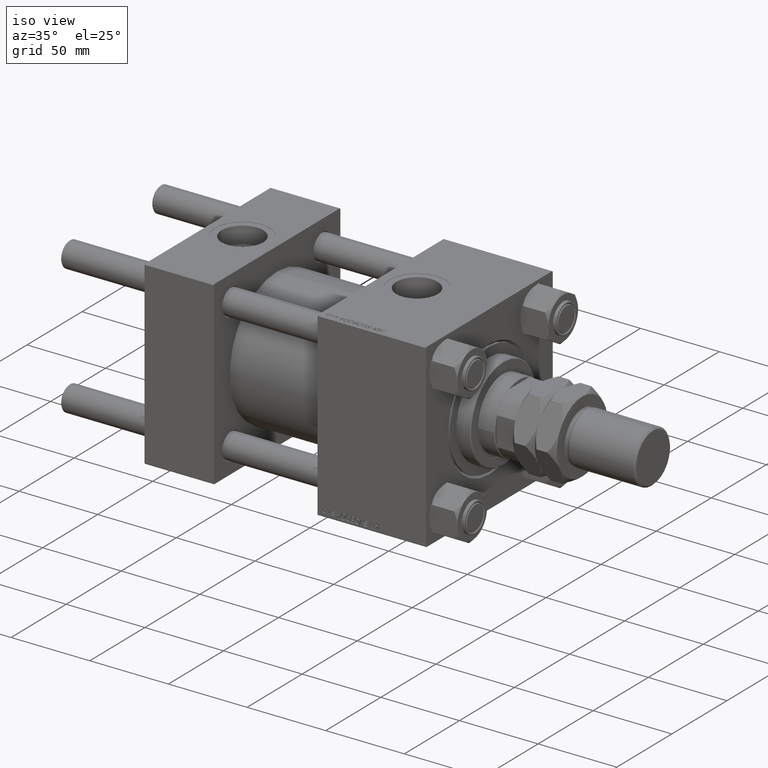
[diagram: clean part render]
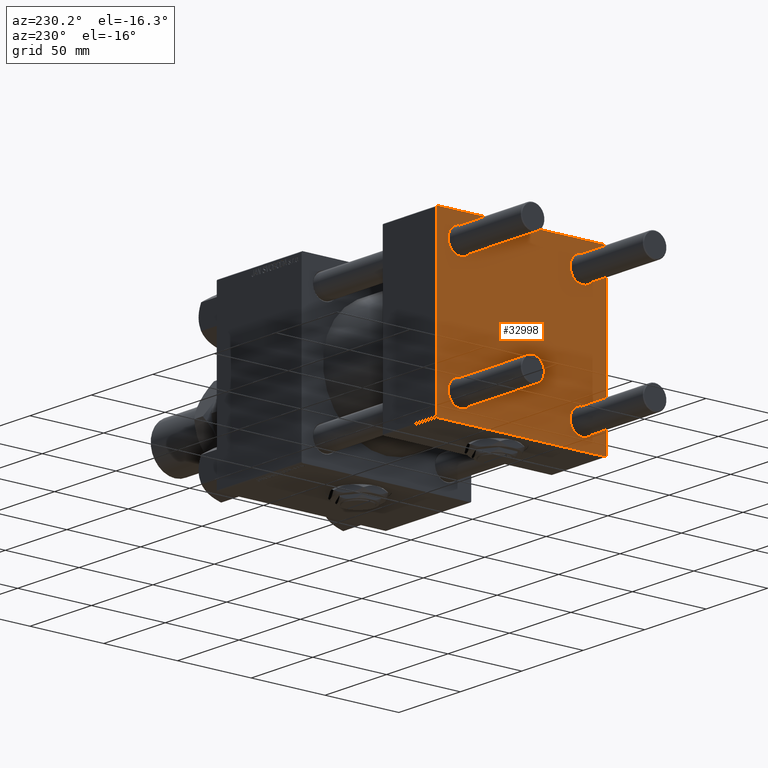
[diagram: tour spotlight — one face highlighted and labeled with its STEP entity id]
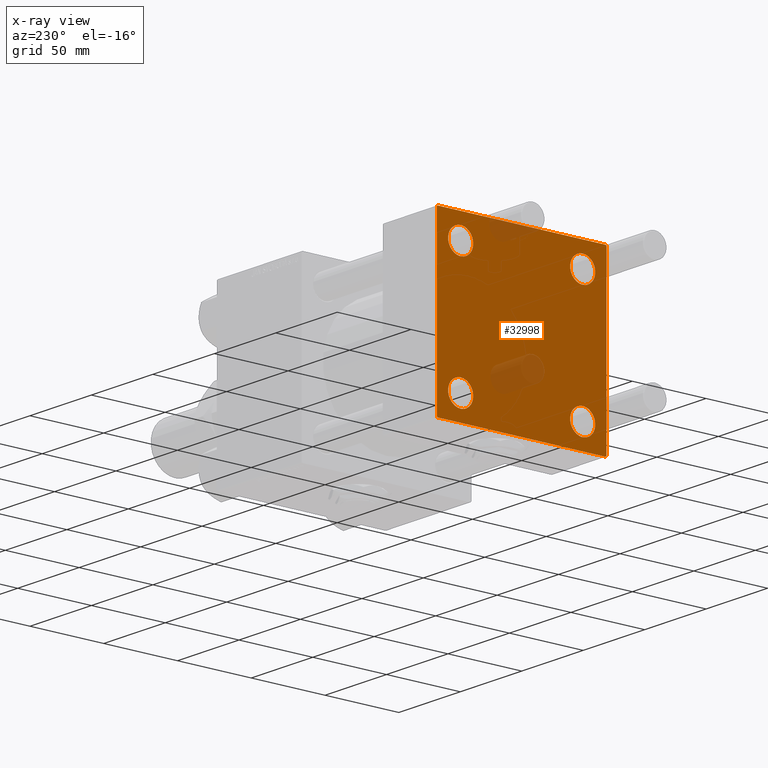
[diagram: x-ray of the same camera — body ghosted, this tour face saturated]
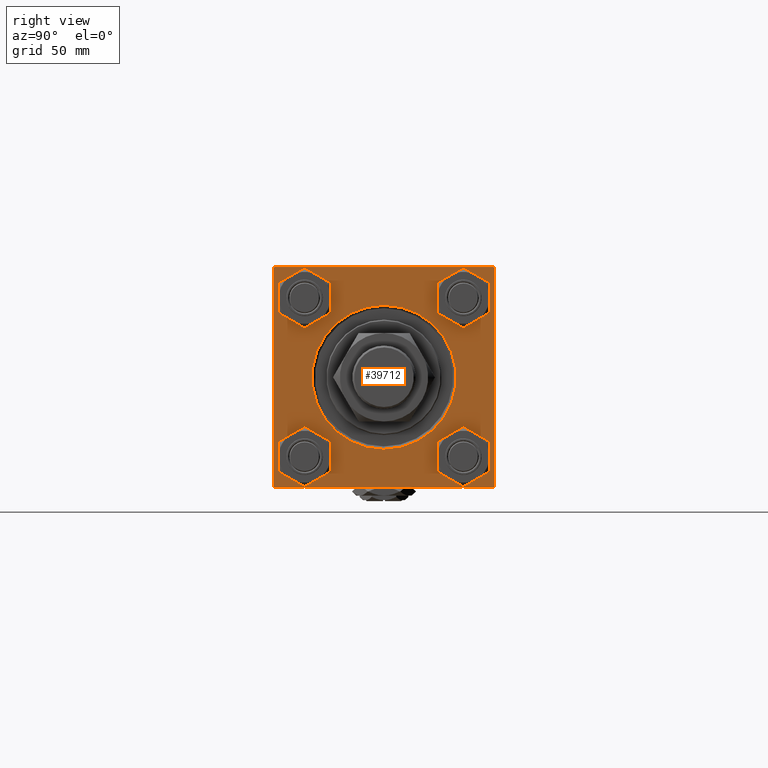
[diagram: tour spotlight — one face highlighted and labeled with its STEP entity id]
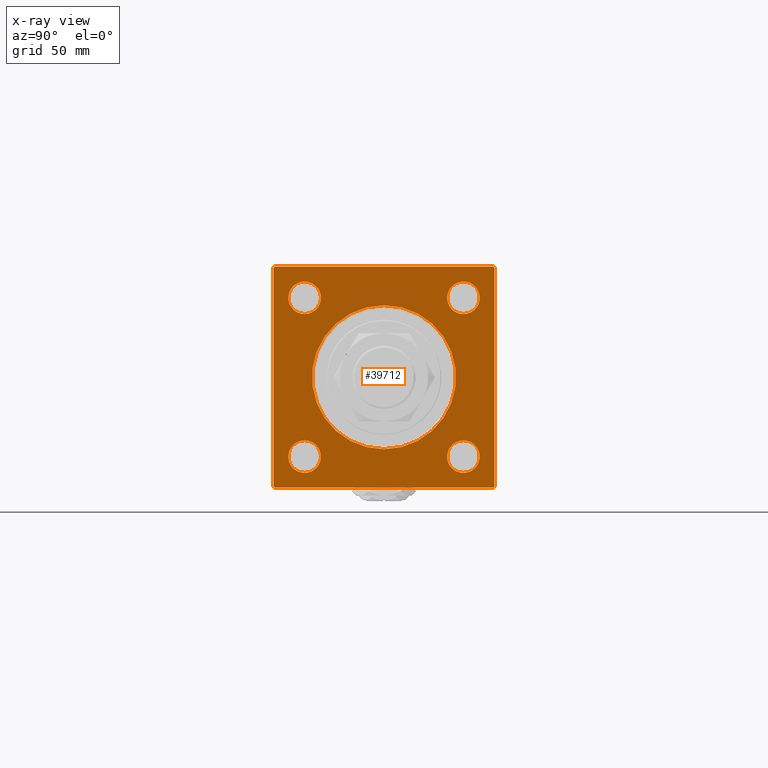
[diagram: x-ray of the same camera — body ghosted, this tour face saturated]
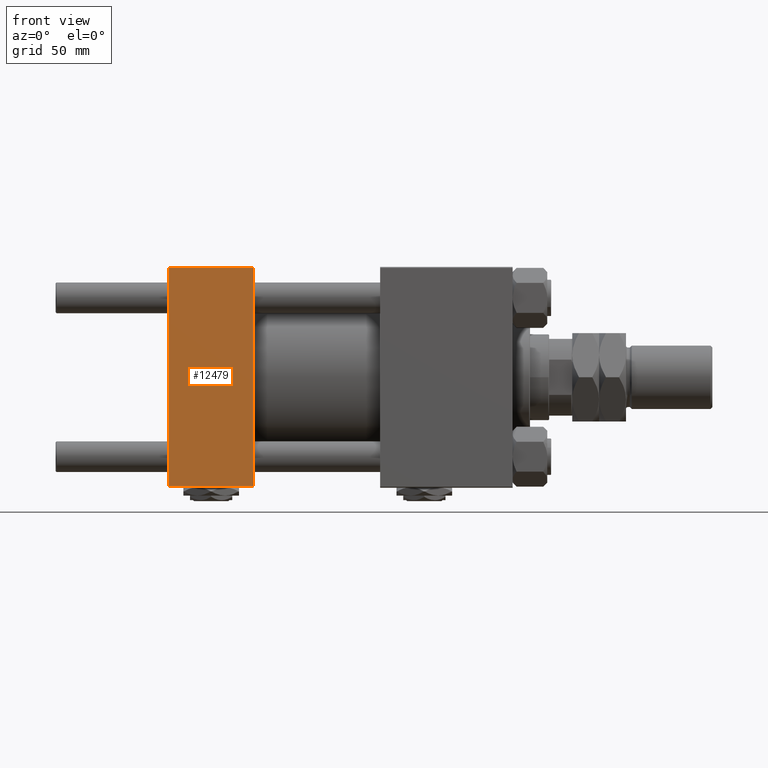
[diagram: tour spotlight — one face highlighted and labeled with its STEP entity id]
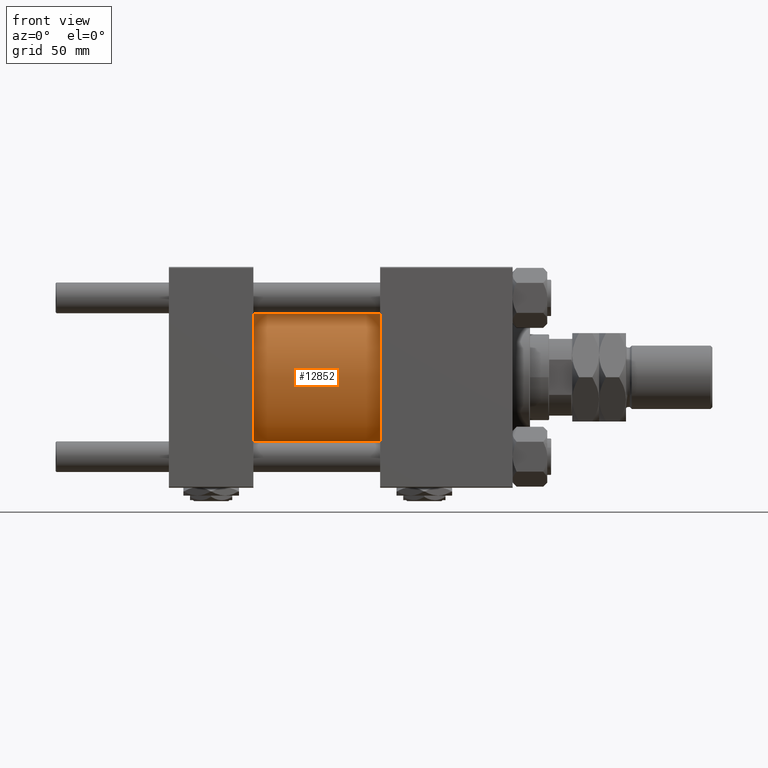
[diagram: tour spotlight — one face highlighted and labeled with its STEP entity id]
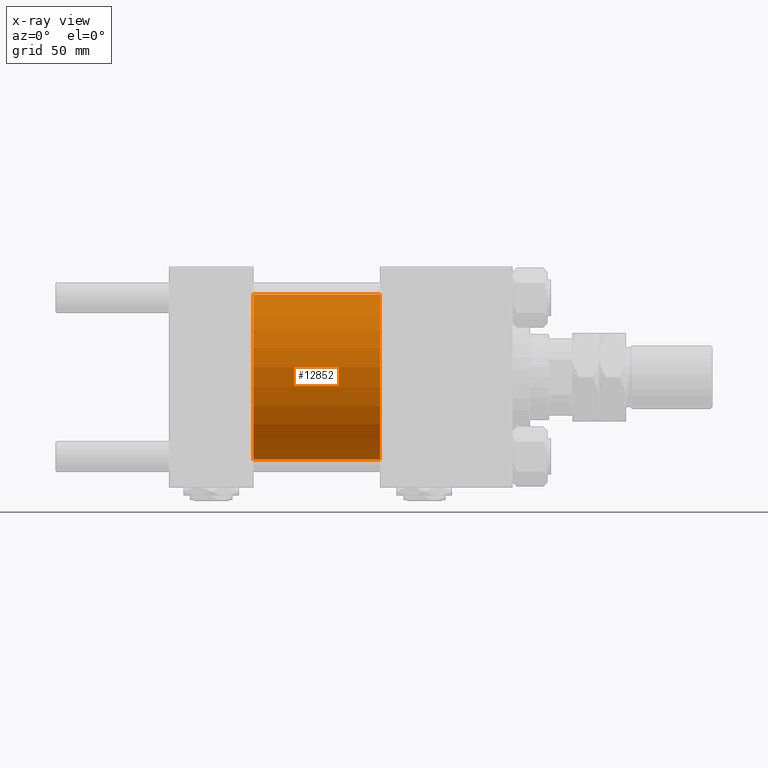
[diagram: x-ray of the same camera — body ghosted, this tour face saturated]
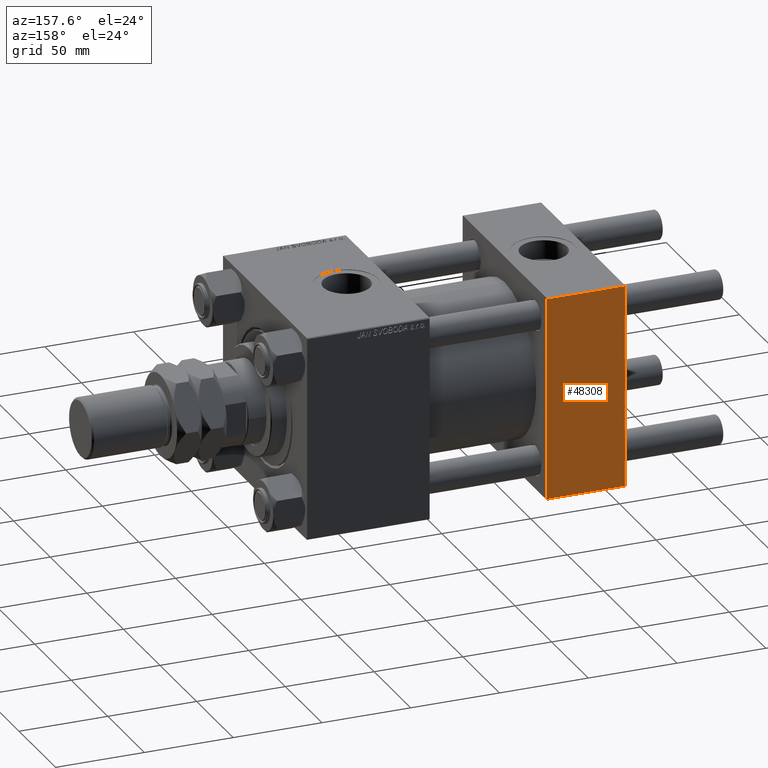
[diagram: tour spotlight — one face highlighted and labeled with its STEP entity id]
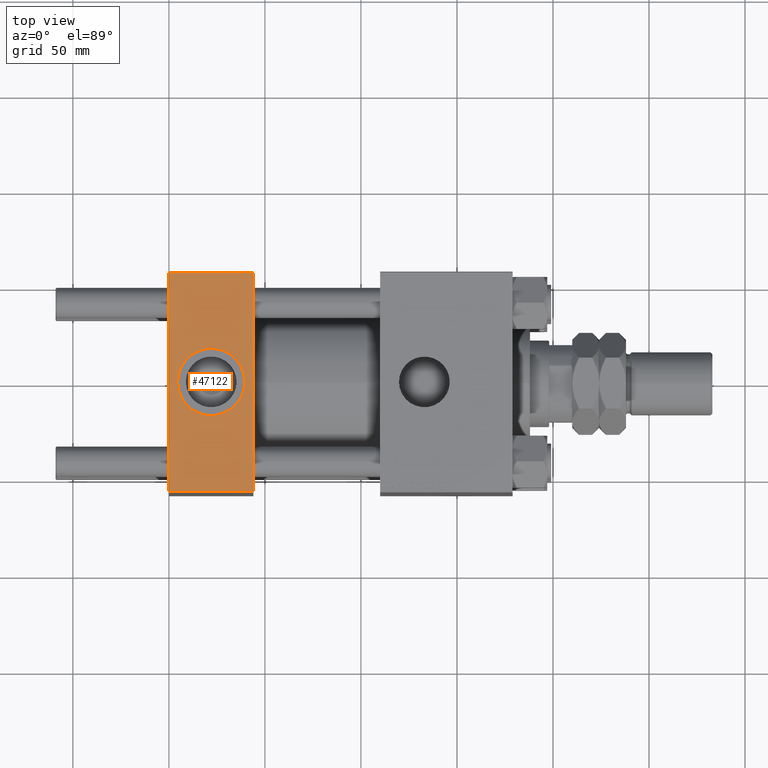
[diagram: tour spotlight — one face highlighted and labeled with its STEP entity id]
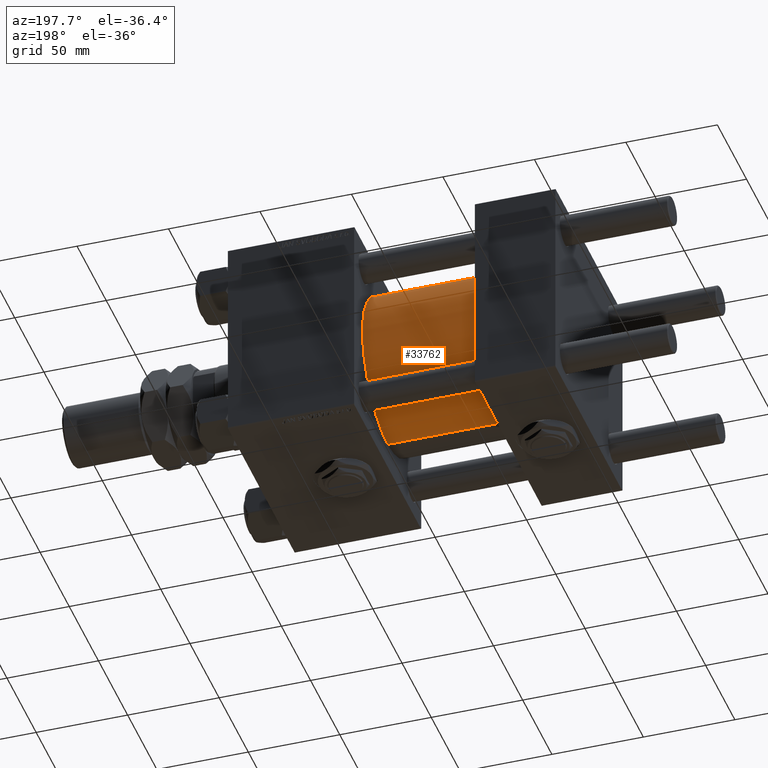
[diagram: tour spotlight — one face highlighted and labeled with its STEP entity id]
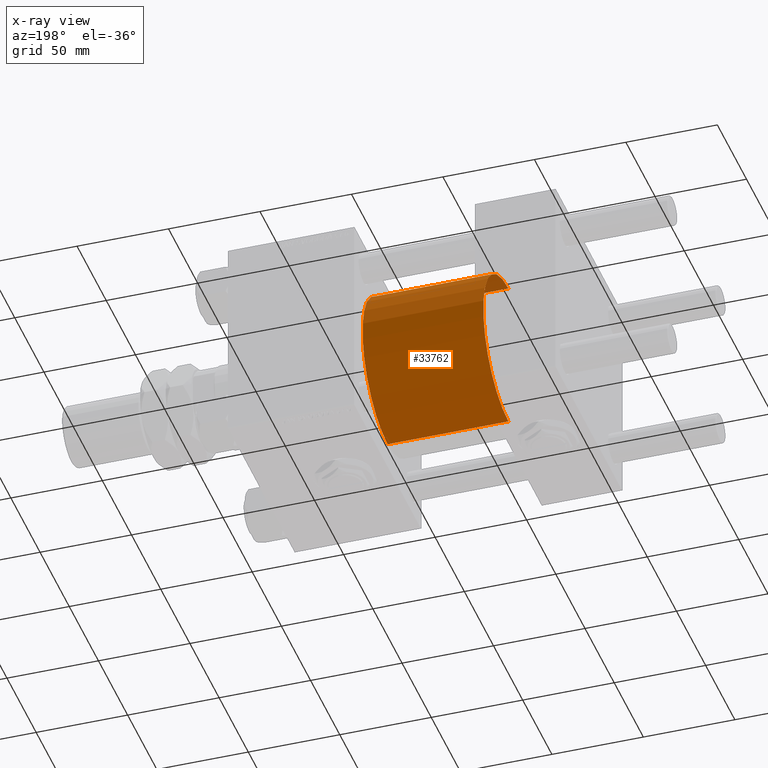
[diagram: x-ray of the same camera — body ghosted, this tour face saturated]
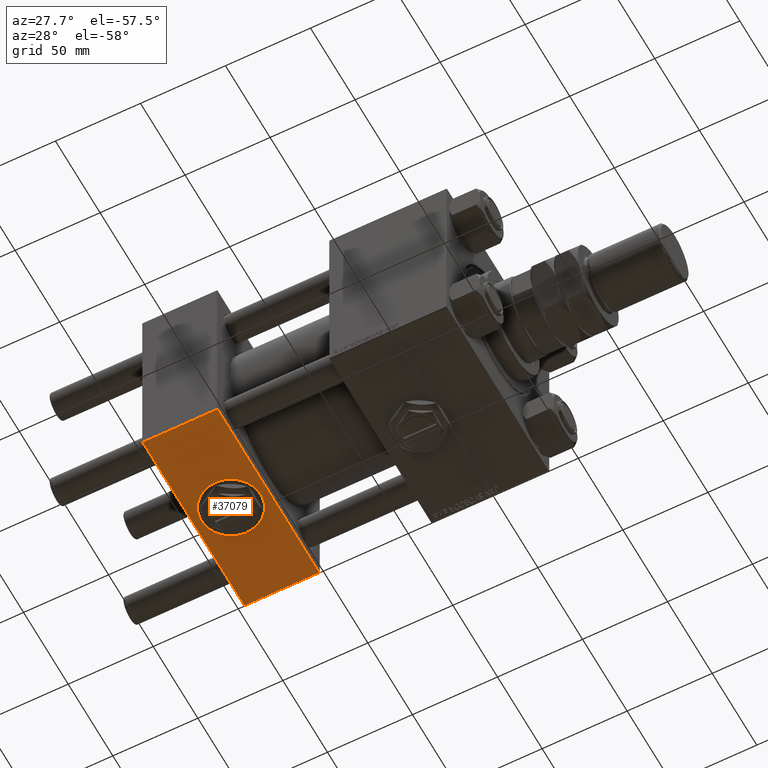
[diagram: tour spotlight — one face highlighted and labeled with its STEP entity id]
A machine part: a face-by-face anatomy tour. The part has 1330 B-rep faces; the first image is the clean iso view, then the 8 largest visible faces are spotlighted one at a time (largest first), each with its STEP entity span.

Face 1 — auxiliary view, entity #32998. An x-ray twin of the same camera follows (body ghosted, this face saturated) — the face is partly hidden behind the body. In plain terms, the highlighted planar face has unit normal (-1, 0, 0).
Definition (entity closure, byte-faithful):
#49 = AXIS2_PLACEMENT_3D ( 'NONE', #22712, #23266, #30638 ) ;
#442 = CIRCLE ( 'NONE', #4787, 8.499999999999992895 ) ;
#1646 = VERTEX_POINT ( 'NONE', #13178 ) ;
#1819 = VECTOR ( 'NONE', #5484, 1000.000000000000114 ) ;
#2089 = DIRECTION ( 'NONE',  ( -1.000000000000000000, 0.000000000000000000, -0.000000000000000000 ) ) ;
#2223 = DIRECTION ( 'NONE',  ( 0.000000000000000000, 0.7071067811865573427, -0.7071067811865376918 ) ) ;
#2971 = ORIENTED_EDGE ( 'NONE', *, *, #31442, .T. ) ;
#3383 = EDGE_CURVE ( 'NONE', #40419, #29008, #27074, .T. ) ;
#4617 = VERTEX_POINT ( 'NONE', #37620 ) ;
#4787 = AXIS2_PLACEMENT_3D ( 'NONE', #11529, #33362, #29003 ) ;
#5484 = DIRECTION ( 'NONE',  ( 0.000000000000000000, -0.7071067811865474617, 0.7071067811865474617 ) ) ;
#5533 = CARTESIAN_POINT ( 'NONE',  ( 0.000000000000000000, 41.34999999999999432, -41.35000000000000142 ) ) ;
#5751 = CARTESIAN_POINT ( 'NONE',  ( 0.000000000000000000, 57.24999999999922551, 57.25000000000081712 ) ) ;
#6159 = PLANE ( 'NONE',  #24902 ) ;
#6318 = CIRCLE ( 'NONE', #15894, 8.499999999999992895 ) ;
#7435 = CARTESIAN_POINT ( 'NONE',  ( 0.000000000000000000, -41.34999999999998721, 41.35000000000000853 ) ) ;
#7579 = CARTESIAN_POINT ( 'NONE',  ( 0.000000000000000000, -41.34999999999998721, -49.85000000000000853 ) ) ;
#7594 = LINE ( 'NONE', #49590, #50764 ) ;
#7909 = CARTESIAN_POINT ( 'NONE',  ( 0.000000000000000000, -57.00000000000003553, 57.49999999999999289 ) ) ;
#7925 = ORIENTED_EDGE ( 'NONE', *, *, #13402, .T. ) ;
#8231 = VERTEX_POINT ( 'NONE', #26617 ) ;
#8508 = CARTESIAN_POINT ( 'NONE',  ( 0.000000000000000000, 57.25000000000081712, -57.24999999999922551 ) ) ;
#8645 = CARTESIAN_POINT ( 'NONE',  ( 0.000000000000000000, 57.00000000000002132, -57.49999999999999289 ) ) ;
#9050 = VECTOR ( 'NONE', #43688, 1000.000000000000000 ) ;
#10200 = CARTESIAN_POINT ( 'NONE',  ( 0.000000000000000000, -41.34999999999998721, -41.35000000000000853 ) ) ;
#11142 = CIRCLE ( 'NONE', #12892, 8.499999999999992895 ) ;
#11268 = DIRECTION ( 'NONE',  ( 0.000000000000000000, -1.000000000000000000, -1.206764157201257045E-16 ) ) ;
#11529 = CARTESIAN_POINT ( 'NONE',  ( 0.000000000000000000, -41.34999999999998721, 41.35000000000000853 ) ) ;
#11637 = ORIENTED_EDGE ( 'NONE', *, *, #51231, .T. ) ;
#12014 = DIRECTION ( 'NONE',  ( 1.000000000000000000, -0.000000000000000000, 0.000000000000000000 ) ) ;
#12892 = AXIS2_PLACEMENT_3D ( 'NONE', #5533, #38564, #43462 ) ;
#13178 = CARTESIAN_POINT ( 'NONE',  ( 0.000000000000000000, 57.49999999999999289, 57.00000000000003553 ) ) ;
#13227 = DIRECTION ( 'NONE',  ( 0.000000000000000000, -1.000000000000000000, -1.206764157201257045E-16 ) ) ;
#13402 = EDGE_CURVE ( 'NONE', #8231, #14091, #45882, .T. ) ;
#13624 = EDGE_LOOP ( 'NONE', ( #11637, #7925, #49364, #36600, #49288, #19005, #52834, #37538 ) ) ;
#14030 = VERTEX_POINT ( 'NONE', #7579 ) ;
#14091 = VERTEX_POINT ( 'NONE', #8645 ) ;
#14596 = CARTESIAN_POINT ( 'NONE',  ( 0.000000000000000000, -41.34999999999998721, -41.35000000000000853 ) ) ;
#14627 = DIRECTION ( 'NONE',  ( -0.000000000000000000, 0.000000000000000000, 1.000000000000000000 ) ) ;
#14892 = FACE_BOUND ( 'NONE', #26744, .T. ) ;
#15769 = DIRECTION ( 'NONE',  ( -0.000000000000000000, 0.7071067811865376918, 0.7071067811865573427 ) ) ;
#15890 = DIRECTION ( 'NONE',  ( 0.000000000000000000, 0.000000000000000000, -1.000000000000000000 ) ) ;
#15894 = AXIS2_PLACEMENT_3D ( 'NONE', #36843, #12014, #28668 ) ;
#16076 = EDGE_CURVE ( 'NONE', #21629, #17263, #30952, .T. ) ;
#16497 = CARTESIAN_POINT ( 'NONE',  ( 0.000000000000000000, -41.34999999999998721, 32.85000000000001563 ) ) ;
#16829 = VECTOR ( 'NONE', #13227, 1000.000000000000000 ) ;
#17263 = VERTEX_POINT ( 'NONE', #7909 ) ;
#18827 = EDGE_CURVE ( 'NONE', #44031, #31579, #23565, .T. ) ;
#19005 = ORIENTED_EDGE ( 'NONE', *, *, #52881, .T. ) ;
#19267 = CARTESIAN_POINT ( 'NONE',  ( 0.000000000000000000, 57.00000000000000711, 57.50000000000000711 ) ) ;
#19443 = AXIS2_PLACEMENT_3D ( 'NONE', #14596, #48398, #23068 ) ;
#20798 = VERTEX_POINT ( 'NONE', #16497 ) ;
#21607 = EDGE_LOOP ( 'NONE', ( #22776, #51814 ) ) ;
#21629 = VERTEX_POINT ( 'NONE', #19267 ) ;
#22070 = EDGE_CURVE ( 'NONE', #30968, #29008, #42859, .T. ) ;
#22712 = CARTESIAN_POINT ( 'NONE',  ( 0.000000000000000000, 41.34999999999999432, 41.35000000000000142 ) ) ;
#22776 = ORIENTED_EDGE ( 'NONE', *, *, #18827, .T. ) ;
#23068 = DIRECTION ( 'NONE',  ( 0.000000000000000000, 0.000000000000000000, 1.000000000000000000 ) ) ;
#23266 = DIRECTION ( 'NONE',  ( 1.000000000000000000, -0.000000000000000000, 0.000000000000000000 ) ) ;
#23565 = CIRCLE ( 'NONE', #49, 8.499999999999992895 ) ;
#24902 = AXIS2_PLACEMENT_3D ( 'NONE', #39448, #2089, #14627 ) ;
#25414 = ORIENTED_EDGE ( 'NONE', *, *, #48249, .T. ) ;
#25993 = CARTESIAN_POINT ( 'NONE',  ( 0.000000000000000000, -57.50000000000000711, 57.49999999999999289 ) ) ;
#26425 = CIRCLE ( 'NONE', #46450, 8.499999999999992895 ) ;
#26617 = CARTESIAN_POINT ( 'NONE',  ( 0.000000000000000000, 57.49999999999999289, -57.00000000000000711 ) ) ;
#26744 = EDGE_LOOP ( 'NONE', ( #2971, #25414 ) ) ;
#26923 = FACE_BOUND ( 'NONE', #43813, .T. ) ;
#27057 = EDGE_CURVE ( 'NONE', #51310, #14030, #44706, .T. ) ;
#27074 = LINE ( 'NONE', #25993, #9050 ) ;
#27989 = CARTESIAN_POINT ( 'NONE',  ( 0.000000000000000000, -57.00000000000000711, -57.50000000000000711 ) ) ;
#28668 = DIRECTION ( 'NONE',  ( 0.000000000000000000, 0.000000000000000000, 1.000000000000000000 ) ) ;
#28761 = CARTESIAN_POINT ( 'NONE',  ( 0.000000000000000000, 41.34999999999999432, 49.85000000000000142 ) ) ;
#28853 = VERTEX_POINT ( 'NONE', #38333 ) ;
#28969 = VECTOR ( 'NONE', #15890, 1000.000000000000000 ) ;
#29003 = DIRECTION ( 'NONE',  ( 0.000000000000000000, 0.000000000000000000, 1.000000000000000000 ) ) ;
#29008 = VERTEX_POINT ( 'NONE', #49476 ) ;
#29367 = LINE ( 'NONE', #34248, #16829 ) ;
#29873 = VERTEX_POINT ( 'NONE', #45737 ) ;
#29887 = DIRECTION ( 'NONE',  ( 1.000000000000000000, -0.000000000000000000, 0.000000000000000000 ) ) ;
#30471 = FACE_OUTER_BOUND ( 'NONE', #13624, .T. ) ;
#30638 = DIRECTION ( 'NONE',  ( 0.000000000000000000, 0.000000000000000000, 1.000000000000000000 ) ) ;
#30952 = LINE ( 'NONE', #48360, #52982 ) ;
#30968 = VERTEX_POINT ( 'NONE', #27989 ) ;
#31364 = CARTESIAN_POINT ( 'NONE',  ( 0.000000000000000000, -41.34999999999998721, -32.85000000000001563 ) ) ;
#31442 = EDGE_CURVE ( 'NONE', #29873, #20798, #442, .T. ) ;
#31579 = VERTEX_POINT ( 'NONE', #49335 ) ;
#32998 = ADVANCED_FACE ( 'NONE', ( #14892, #26923, #39991, #43532, #30471 ), #6159, .T. ) ;
#33362 = DIRECTION ( 'NONE',  ( 1.000000000000000000, -0.000000000000000000, 0.000000000000000000 ) ) ;
#33885 = EDGE_CURVE ( 'NONE', #14030, #51310, #52769, .T. ) ;
#34248 = CARTESIAN_POINT ( 'NONE',  ( 0.000000000000000000, 57.49999999999999289, -57.49999999999999289 ) ) ;
#34526 = DIRECTION ( 'NONE',  ( 0.000000000000000000, 0.000000000000000000, 1.000000000000000000 ) ) ;
#35596 = DIRECTION ( 'NONE',  ( 1.000000000000000000, -0.000000000000000000, 0.000000000000000000 ) ) ;
#35919 = EDGE_LOOP ( 'NONE', ( #42206, #50972 ) ) ;
#36600 = ORIENTED_EDGE ( 'NONE', *, *, #22070, .T. ) ;
#36843 = CARTESIAN_POINT ( 'NONE',  ( 0.000000000000000000, 41.34999999999999432, -41.35000000000000142 ) ) ;
#37538 = ORIENTED_EDGE ( 'NONE', *, *, #48455, .T. ) ;
#37620 = CARTESIAN_POINT ( 'NONE',  ( 0.000000000000000000, 41.34999999999999432, -49.85000000000000142 ) ) ;
#38070 = CARTESIAN_POINT ( 'NONE',  ( 0.000000000000000000, 41.34999999999999432, 41.35000000000000142 ) ) ;
#38333 = CARTESIAN_POINT ( 'NONE',  ( 0.000000000000000000, 41.34999999999999432, -32.85000000000000853 ) ) ;
#38564 = DIRECTION ( 'NONE',  ( 1.000000000000000000, -0.000000000000000000, 0.000000000000000000 ) ) ;
#39448 = CARTESIAN_POINT ( 'NONE',  ( 0.000000000000000000, 0.000000000000000000, 0.000000000000000000 ) ) ;
#39582 = LINE ( 'NONE', #5751, #49025 ) ;
#39694 = AXIS2_PLACEMENT_3D ( 'NONE', #10200, #35596, #51662 ) ;
#39991 = FACE_BOUND ( 'NONE', #35919, .T. ) ;
#40318 = CIRCLE ( 'NONE', #51603, 8.499999999999992895 ) ;
#40419 = VERTEX_POINT ( 'NONE', #50420 ) ;
#41260 = EDGE_CURVE ( 'NONE', #28853, #4617, #11142, .T. ) ;
#41261 = CARTESIAN_POINT ( 'NONE',  ( 0.000000000000000000, 57.49999999999999289, 57.50000000000000711 ) ) ;
#42206 = ORIENTED_EDGE ( 'NONE', *, *, #41260, .T. ) ;
#42859 = LINE ( 'NONE', #49976, #1819 ) ;
#43462 = DIRECTION ( 'NONE',  ( 0.000000000000000000, 0.000000000000000000, 1.000000000000000000 ) ) ;
#43532 = FACE_BOUND ( 'NONE', #21607, .T. ) ;
#43688 = DIRECTION ( 'NONE',  ( 0.000000000000000000, 0.000000000000000000, -1.000000000000000000 ) ) ;
#43813 = EDGE_LOOP ( 'NONE', ( #50775, #46764 ) ) ;
#44031 = VERTEX_POINT ( 'NONE', #28761 ) ;
#44706 = CIRCLE ( 'NONE', #19443, 8.499999999999992895 ) ;
#45343 = DIRECTION ( 'NONE',  ( 0.000000000000000000, 0.000000000000000000, 1.000000000000000000 ) ) ;
#45621 = LINE ( 'NONE', #41261, #28969 ) ;
#45737 = CARTESIAN_POINT ( 'NONE',  ( 0.000000000000000000, -41.34999999999998721, 49.85000000000000853 ) ) ;
#45882 = LINE ( 'NONE', #8508, #49351 ) ;
#46398 = DIRECTION ( 'NONE',  ( -0.000000000000000000, -0.7071067811865376918, -0.7071067811865573427 ) ) ;
#46450 = AXIS2_PLACEMENT_3D ( 'NONE', #38070, #29887, #34526 ) ;
#46764 = ORIENTED_EDGE ( 'NONE', *, *, #33885, .T. ) ;
#47824 = EDGE_CURVE ( 'NONE', #4617, #28853, #6318, .T. ) ;
#48249 = EDGE_CURVE ( 'NONE', #20798, #29873, #40318, .T. ) ;
#48360 = CARTESIAN_POINT ( 'NONE',  ( 0.000000000000000000, 57.49999999999999289, 57.50000000000000711 ) ) ;
#48398 = DIRECTION ( 'NONE',  ( 1.000000000000000000, -0.000000000000000000, 0.000000000000000000 ) ) ;
#48455 = EDGE_CURVE ( 'NONE', #21629, #1646, #39582, .T. ) ;
#49025 = VECTOR ( 'NONE', #2223, 1000.000000000000114 ) ;
#49288 = ORIENTED_EDGE ( 'NONE', *, *, #3383, .F. ) ;
#49335 = CARTESIAN_POINT ( 'NONE',  ( 0.000000000000000000, 41.34999999999999432, 32.85000000000000853 ) ) ;
#49351 = VECTOR ( 'NONE', #46398, 1000.000000000000114 ) ;
#49364 = ORIENTED_EDGE ( 'NONE', *, *, #53401, .T. ) ;
#49476 = CARTESIAN_POINT ( 'NONE',  ( 0.000000000000000000, -57.50000000000000711, -57.00000000000000711 ) ) ;
#49590 = CARTESIAN_POINT ( 'NONE',  ( -0.000000000000000000, -57.25000000000081712, 57.24999999999922551 ) ) ;
#49976 = CARTESIAN_POINT ( 'NONE',  ( 0.000000000000000000, -57.25000000000000711, -57.25000000000000711 ) ) ;
#50420 = CARTESIAN_POINT ( 'NONE',  ( 0.000000000000000000, -57.50000000000000711, 57.00000000000000711 ) ) ;
#50764 = VECTOR ( 'NONE', #15769, 1000.000000000000114 ) ;
#50775 = ORIENTED_EDGE ( 'NONE', *, *, #27057, .T. ) ;
#50972 = ORIENTED_EDGE ( 'NONE', *, *, #47824, .T. ) ;
#51231 = EDGE_CURVE ( 'NONE', #1646, #8231, #45621, .T. ) ;
#51310 = VERTEX_POINT ( 'NONE', #31364 ) ;
#51603 = AXIS2_PLACEMENT_3D ( 'NONE', #7435, #53534, #45343 ) ;
#51662 = DIRECTION ( 'NONE',  ( 0.000000000000000000, 0.000000000000000000, 1.000000000000000000 ) ) ;
#51814 = ORIENTED_EDGE ( 'NONE', *, *, #53423, .T. ) ;
#52769 = CIRCLE ( 'NONE', #39694, 8.499999999999992895 ) ;
#52834 = ORIENTED_EDGE ( 'NONE', *, *, #16076, .F. ) ;
#52881 = EDGE_CURVE ( 'NONE', #40419, #17263, #7594, .T. ) ;
#52982 = VECTOR ( 'NONE', #11268, 1000.000000000000000 ) ;
#53401 = EDGE_CURVE ( 'NONE', #14091, #30968, #29367, .T. ) ;
#53423 = EDGE_CURVE ( 'NONE', #31579, #44031, #26425, .T. ) ;
#53534 = DIRECTION ( 'NONE',  ( 1.000000000000000000, -0.000000000000000000, 0.000000000000000000 ) ) ;

Face 2 — right view, entity #39712. An x-ray twin of the same camera follows (body ghosted, this face saturated) — the face is partly hidden behind the body. In plain terms, the highlighted planar face has unit normal (-1, 0, 0).
Definition (entity closure, byte-faithful):
#100 = CIRCLE ( 'NONE', #42753, 37.50000000000000711 ) ;
#235 = FACE_BOUND ( 'NONE', #7310, .T. ) ;
#269 = DIRECTION ( 'NONE',  ( -1.000000000000000000, 0.000000000000000000, -0.000000000000000000 ) ) ;
#1590 = VECTOR ( 'NONE', #30342, 1000.000000000000000 ) ;
#2056 = VERTEX_POINT ( 'NONE', #14389 ) ;
#2244 = CARTESIAN_POINT ( 'NONE',  ( 179.0000000000000000, 57.50000000000000000, 57.50000000000000711 ) ) ;
#2341 = CIRCLE ( 'NONE', #20673, 8.500000000000007105 ) ;
#2521 = VERTEX_POINT ( 'NONE', #35074 ) ;
#2867 = VERTEX_POINT ( 'NONE', #37430 ) ;
#3071 = AXIS2_PLACEMENT_3D ( 'NONE', #31249, #32047, #48643 ) ;
#3713 = VECTOR ( 'NONE', #46015, 1000.000000000000000 ) ;
#3896 = VERTEX_POINT ( 'NONE', #40627 ) ;
#4143 = CARTESIAN_POINT ( 'NONE',  ( 179.0000000000000000, -41.34999999999998721, -41.35000000000000853 ) ) ;
#4205 = DIRECTION ( 'NONE',  ( 0.000000000000000000, -1.000000000000000000, -1.206764157201257291E-16 ) ) ;
#4248 = ORIENTED_EDGE ( 'NONE', *, *, #22631, .F. ) ;
#4381 = VERTEX_POINT ( 'NONE', #5451 ) ;
#4845 = AXIS2_PLACEMENT_3D ( 'NONE', #52686, #21694, #31993 ) ;
#5044 = ORIENTED_EDGE ( 'NONE', *, *, #35966, .F. ) ;
#5236 = ORIENTED_EDGE ( 'NONE', *, *, #9405, .T. ) ;
#5451 = CARTESIAN_POINT ( 'NONE',  ( 179.0000000000000000, 41.34999999999999432, 49.85000000000001563 ) ) ;
#5474 = LINE ( 'NONE', #21865, #1590 ) ;
#5561 = DIRECTION ( 'NONE',  ( 0.000000000000000000, 0.000000000000000000, -1.000000000000000000 ) ) ;
#6393 = EDGE_CURVE ( 'NONE', #4381, #8567, #7424, .T. ) ;
#6409 = DIRECTION ( 'NONE',  ( 0.000000000000000000, 0.000000000000000000, 1.000000000000000000 ) ) ;
#7271 = DIRECTION ( 'NONE',  ( 0.000000000000000000, 0.000000000000000000, 1.000000000000000000 ) ) ;
#7310 = EDGE_LOOP ( 'NONE', ( #33052, #35611 ) ) ;
#7424 = CIRCLE ( 'NONE', #3071, 8.500000000000007105 ) ;
#7443 = EDGE_CURVE ( 'NONE', #2521, #40599, #49274, .T. ) ;
#7665 = EDGE_LOOP ( 'NONE', ( #20278, #5236 ) ) ;
#7765 = VERTEX_POINT ( 'NONE', #53430 ) ;
#8006 = LINE ( 'NONE', #24668, #26656 ) ;
#8567 = VERTEX_POINT ( 'NONE', #10166 ) ;
#8767 = DIRECTION ( 'NONE',  ( 0.000000000000000000, 0.000000000000000000, 1.000000000000000000 ) ) ;
#9034 = DIRECTION ( 'NONE',  ( -1.000000000000000000, 0.000000000000000000, -0.000000000000000000 ) ) ;
#9322 = CIRCLE ( 'NONE', #18065, 8.500000000000007105 ) ;
#9405 = EDGE_CURVE ( 'NONE', #3896, #11501, #26759, .T. ) ;
#9740 = FACE_BOUND ( 'NONE', #42421, .T. ) ;
#10166 = CARTESIAN_POINT ( 'NONE',  ( 179.0000000000000000, 41.34999999999999432, 32.84999999999999432 ) ) ;
#10394 = EDGE_CURVE ( 'NONE', #28199, #28081, #9322, .T. ) ;
#10608 = VERTEX_POINT ( 'NONE', #22941 ) ;
#10960 = VERTEX_POINT ( 'NONE', #31079 ) ;
#11039 = CARTESIAN_POINT ( 'NONE',  ( 179.0000000000000000, 41.34999999999999432, 41.35000000000000142 ) ) ;
#11501 = VERTEX_POINT ( 'NONE', #42912 ) ;
#11689 = EDGE_LOOP ( 'NONE', ( #24739, #30552 ) ) ;
#11953 = ORIENTED_EDGE ( 'NONE', *, *, #17934, .T. ) ;
#12325 = DIRECTION ( 'NONE',  ( 0.000000000000000000, 0.000000000000000000, 1.000000000000000000 ) ) ;
#12788 = FACE_OUTER_BOUND ( 'NONE', #20714, .T. ) ;
#12985 = DIRECTION ( 'NONE',  ( 0.000000000000000000, 0.000000000000000000, 1.000000000000000000 ) ) ;
#13040 = CARTESIAN_POINT ( 'NONE',  ( 179.0000000000000000, 0.000000000000000000, 0.000000000000000000 ) ) ;
#13408 = EDGE_CURVE ( 'NONE', #2056, #27510, #2341, .T. ) ;
#14138 = AXIS2_PLACEMENT_3D ( 'NONE', #21055, #42053, #8767 ) ;
#14363 = ORIENTED_EDGE ( 'NONE', *, *, #45973, .T. ) ;
#14389 = CARTESIAN_POINT ( 'NONE',  ( 179.0000000000000000, -41.34999999999998721, -49.85000000000002274 ) ) ;
#14932 = DIRECTION ( 'NONE',  ( 0.000000000000000000, 0.000000000000000000, -1.000000000000000000 ) ) ;
#15038 = CARTESIAN_POINT ( 'NONE',  ( 179.0000000000000000, 57.50000000000000000, -56.99999999999994316 ) ) ;
#15127 = EDGE_LOOP ( 'NONE', ( #25301, #37779 ) ) ;
#15323 = CARTESIAN_POINT ( 'NONE',  ( 179.0000000000000000, 0.000000000000000000, 0.000000000000000000 ) ) ;
#15421 = EDGE_CURVE ( 'NONE', #28081, #28199, #51181, .T. ) ;
#15740 = CARTESIAN_POINT ( 'NONE',  ( 179.0000000000000000, -41.34999999999998721, 49.85000000000002274 ) ) ;
#15741 = VECTOR ( 'NONE', #14932, 1000.000000000000000 ) ;
#16343 = EDGE_CURVE ( 'NONE', #38125, #10960, #5474, .T. ) ;
#16830 = CARTESIAN_POINT ( 'NONE',  ( 179.0000000000000000, -56.99999999999995737, -57.49999999999997868 ) ) ;
#16861 = FACE_BOUND ( 'NONE', #7665, .T. ) ;
#17217 = DIRECTION ( 'NONE',  ( -1.000000000000000000, 0.000000000000000000, -0.000000000000000000 ) ) ;
#17934 = EDGE_CURVE ( 'NONE', #10608, #23761, #52955, .T. ) ;
#18065 = AXIS2_PLACEMENT_3D ( 'NONE', #50341, #21709, #12985 ) ;
#20278 = ORIENTED_EDGE ( 'NONE', *, *, #45633, .T. ) ;
#20673 = AXIS2_PLACEMENT_3D ( 'NONE', #21600, #9034, #53533 ) ;
#20714 = EDGE_LOOP ( 'NONE', ( #14363, #44817, #5044, #27550, #4248, #22518, #28621, #11953 ) ) ;
#21055 = CARTESIAN_POINT ( 'NONE',  ( 179.0000000000000000, -41.34999999999998721, 41.35000000000000853 ) ) ;
#21194 = AXIS2_PLACEMENT_3D ( 'NONE', #11039, #43773, #6409 ) ;
#21600 = CARTESIAN_POINT ( 'NONE',  ( 179.0000000000000000, -41.34999999999998721, -41.35000000000000853 ) ) ;
#21684 = LINE ( 'NONE', #30424, #38442 ) ;
#21694 = DIRECTION ( 'NONE',  ( -1.000000000000000000, 0.000000000000000000, -0.000000000000000000 ) ) ;
#21709 = DIRECTION ( 'NONE',  ( -1.000000000000000000, 0.000000000000000000, -0.000000000000000000 ) ) ;
#21792 = DIRECTION ( 'NONE',  ( 0.000000000000000000, 0.000000000000000000, 1.000000000000000000 ) ) ;
#21865 = CARTESIAN_POINT ( 'NONE',  ( 179.0000000000000000, 56.99999999999997158, 57.50000000000000711 ) ) ;
#22014 = ORIENTED_EDGE ( 'NONE', *, *, #13408, .T. ) ;
#22518 = ORIENTED_EDGE ( 'NONE', *, *, #16343, .T. ) ;
#22603 = DIRECTION ( 'NONE',  ( -0.000000000000000000, 0.7071067811865279218, 0.7071067811865672237 ) ) ;
#22631 = EDGE_CURVE ( 'NONE', #38125, #44270, #21684, .T. ) ;
#22941 = CARTESIAN_POINT ( 'NONE',  ( 179.0000000000000000, -56.99999999999998579, 57.49999999999999289 ) ) ;
#23140 = DIRECTION ( 'NONE',  ( -1.000000000000000000, 0.000000000000000000, -0.000000000000000000 ) ) ;
#23372 = AXIS2_PLACEMENT_3D ( 'NONE', #29992, #269, #21792 ) ;
#23512 = DIRECTION ( 'NONE',  ( -0.000000000000000000, -0.7071067811865328068, -0.7071067811865622277 ) ) ;
#23511 = CARTESIAN_POINT ( 'NONE',  ( 179.0000000000000000, -57.49999999999999289, -56.99999999999997868 ) ) ;
#23761 = VERTEX_POINT ( 'NONE', #31199 ) ;
#24668 = CARTESIAN_POINT ( 'NONE',  ( 179.0000000000000000, 57.50000000000000000, -57.49999999999996447 ) ) ;
#24739 = ORIENTED_EDGE ( 'NONE', *, *, #27107, .T. ) ;
#25301 = ORIENTED_EDGE ( 'NONE', *, *, #15421, .T. ) ;
#25590 = CIRCLE ( 'NONE', #32592, 8.500000000000007105 ) ;
#25781 = EDGE_CURVE ( 'NONE', #40599, #2521, #27252, .T. ) ;
#26401 = FACE_BOUND ( 'NONE', #15127, .T. ) ;
#26656 = VECTOR ( 'NONE', #4205, 1000.000000000000000 ) ;
#26759 = CIRCLE ( 'NONE', #34585, 37.50000000000000711 ) ;
#27107 = EDGE_CURVE ( 'NONE', #8567, #4381, #53397, .T. ) ;
#27252 = CIRCLE ( 'NONE', #14138, 8.500000000000007105 ) ;
#27501 = DIRECTION ( 'NONE',  ( -0.000000000000000000, 0.000000000000000000, 1.000000000000000000 ) ) ;
#27510 = VERTEX_POINT ( 'NONE', #47806 ) ;
#27550 = ORIENTED_EDGE ( 'NONE', *, *, #29785, .T. ) ;
#27968 = CARTESIAN_POINT ( 'NONE',  ( 179.0000000000000000, 41.34999999999999432, -49.85000000000001563 ) ) ;
#28081 = VERTEX_POINT ( 'NONE', #27968 ) ;
#28199 = VERTEX_POINT ( 'NONE', #29323 ) ;
#28621 = ORIENTED_EDGE ( 'NONE', *, *, #44296, .T. ) ;
#29110 = DIRECTION ( 'NONE',  ( -1.000000000000000000, 0.000000000000000000, -0.000000000000000000 ) ) ;
#29323 = CARTESIAN_POINT ( 'NONE',  ( 179.0000000000000000, 41.34999999999999432, -32.84999999999999432 ) ) ;
#29382 = EDGE_CURVE ( 'NONE', #27510, #2056, #25590, .T. ) ;
#29785 = EDGE_CURVE ( 'NONE', #2867, #44270, #47406, .T. ) ;
#29992 = CARTESIAN_POINT ( 'NONE',  ( 179.0000000000000000, 41.34999999999999432, -41.35000000000000142 ) ) ;
#30342 = DIRECTION ( 'NONE',  ( 0.000000000000000000, -0.7071067811865672237, 0.7071067811865279218 ) ) ;
#30424 = CARTESIAN_POINT ( 'NONE',  ( 179.0000000000000000, 57.50000000000000000, 57.50000000000000711 ) ) ;
#30552 = ORIENTED_EDGE ( 'NONE', *, *, #6393, .T. ) ;
#31079 = CARTESIAN_POINT ( 'NONE',  ( 179.0000000000000000, 56.99999999999997158, 57.50000000000000711 ) ) ;
#31199 = CARTESIAN_POINT ( 'NONE',  ( 179.0000000000000000, -57.49999999999999289, 56.99999999999996447 ) ) ;
#31249 = CARTESIAN_POINT ( 'NONE',  ( 179.0000000000000000, 41.34999999999999432, 41.35000000000000142 ) ) ;
#31993 = DIRECTION ( 'NONE',  ( 0.000000000000000000, 0.000000000000000000, 1.000000000000000000 ) ) ;
#32047 = DIRECTION ( 'NONE',  ( -1.000000000000000000, 0.000000000000000000, -0.000000000000000000 ) ) ;
#32592 = AXIS2_PLACEMENT_3D ( 'NONE', #4143, #17217, #12325 ) ;
#33035 = VECTOR ( 'NONE', #23512, 1000.000000000000000 ) ;
#33052 = ORIENTED_EDGE ( 'NONE', *, *, #7443, .T. ) ;
#33766 = LINE ( 'NONE', #16830, #3713 ) ;
#34366 = VECTOR ( 'NONE', #22603, 1000.000000000000000 ) ;
#34585 = AXIS2_PLACEMENT_3D ( 'NONE', #15323, #44500, #40420 ) ;
#35074 = CARTESIAN_POINT ( 'NONE',  ( 179.0000000000000000, -41.34999999999998721, 32.85000000000000142 ) ) ;
#35257 = LINE ( 'NONE', #2244, #53074 ) ;
#35611 = ORIENTED_EDGE ( 'NONE', *, *, #25781, .T. ) ;
#35966 = EDGE_CURVE ( 'NONE', #2867, #7765, #8006, .T. ) ;
#37430 = CARTESIAN_POINT ( 'NONE',  ( 179.0000000000000000, 57.00000000000000000, -57.49999999999996447 ) ) ;
#37605 = FACE_BOUND ( 'NONE', #11689, .T. ) ;
#37779 = ORIENTED_EDGE ( 'NONE', *, *, #10394, .T. ) ;
#38125 = VERTEX_POINT ( 'NONE', #43151 ) ;
#38411 = VERTEX_POINT ( 'NONE', #23511 ) ;
#38442 = VECTOR ( 'NONE', #5561, 1000.000000000000000 ) ;
#39712 = ADVANCED_FACE ( 'NONE', ( #9740, #26401, #37605, #235, #16861, #12788 ), #50395, .F. ) ;
#40420 = DIRECTION ( 'NONE',  ( 0.000000000000000000, 0.000000000000000000, 1.000000000000000000 ) ) ;
#40599 = VERTEX_POINT ( 'NONE', #15740 ) ;
#40627 = CARTESIAN_POINT ( 'NONE',  ( 179.0000000000000000, 4.592425496802575156E-15, 37.50000000000000711 ) ) ;
#41089 = CARTESIAN_POINT ( 'NONE',  ( 179.0000000000000000, 0.000000000000000000, 0.000000000000000000 ) ) ;
#42053 = DIRECTION ( 'NONE',  ( -1.000000000000000000, 0.000000000000000000, -0.000000000000000000 ) ) ;
#42421 = EDGE_LOOP ( 'NONE', ( #22014, #48130 ) ) ;
#42753 = AXIS2_PLACEMENT_3D ( 'NONE', #41089, #29110, #7271 ) ;
#42912 = CARTESIAN_POINT ( 'NONE',  ( 179.0000000000000000, 0.000000000000000000, -37.50000000000000711 ) ) ;
#43151 = CARTESIAN_POINT ( 'NONE',  ( 179.0000000000000000, 57.50000000000000000, 57.00000000000000711 ) ) ;
#43570 = CARTESIAN_POINT ( 'NONE',  ( 179.0000000000000000, -57.49999999999999289, 57.49999999999999289 ) ) ;
#43773 = DIRECTION ( 'NONE',  ( -1.000000000000000000, 0.000000000000000000, -0.000000000000000000 ) ) ;
#44162 = AXIS2_PLACEMENT_3D ( 'NONE', #13040, #23140, #27501 ) ;
#44270 = VERTEX_POINT ( 'NONE', #15038 ) ;
#44296 = EDGE_CURVE ( 'NONE', #10960, #10608, #35257, .T. ) ;
#44500 = DIRECTION ( 'NONE',  ( -1.000000000000000000, 0.000000000000000000, -0.000000000000000000 ) ) ;
#44817 = ORIENTED_EDGE ( 'NONE', *, *, #50700, .T. ) ;
#45633 = EDGE_CURVE ( 'NONE', #11501, #3896, #100, .T. ) ;
#45973 = EDGE_CURVE ( 'NONE', #23761, #38411, #47671, .T. ) ;
#46015 = DIRECTION ( 'NONE',  ( 0.000000000000000000, 0.7071067811865721087, -0.7071067811865230368 ) ) ;
#47126 = CARTESIAN_POINT ( 'NONE',  ( 179.0000000000000000, 57.50000000000000000, -56.99999999999994316 ) ) ;
#47406 = LINE ( 'NONE', #47126, #34366 ) ;
#47671 = LINE ( 'NONE', #43570, #15741 ) ;
#47806 = CARTESIAN_POINT ( 'NONE',  ( 179.0000000000000000, -41.34999999999998721, -32.85000000000000142 ) ) ;
#48130 = ORIENTED_EDGE ( 'NONE', *, *, #29382, .T. ) ;
#48582 = CARTESIAN_POINT ( 'NONE',  ( 179.0000000000000000, -57.49999999999999289, 56.99999999999996447 ) ) ;
#48643 = DIRECTION ( 'NONE',  ( 0.000000000000000000, 0.000000000000000000, 1.000000000000000000 ) ) ;
#49274 = CIRCLE ( 'NONE', #4845, 8.500000000000007105 ) ;
#50341 = CARTESIAN_POINT ( 'NONE',  ( 179.0000000000000000, 41.34999999999999432, -41.35000000000000142 ) ) ;
#50395 = PLANE ( 'NONE',  #44162 ) ;
#50700 = EDGE_CURVE ( 'NONE', #38411, #7765, #33766, .T. ) ;
#51181 = CIRCLE ( 'NONE', #23372, 8.500000000000007105 ) ;
#52686 = CARTESIAN_POINT ( 'NONE',  ( 179.0000000000000000, -41.34999999999998721, 41.35000000000000853 ) ) ;
#52952 = DIRECTION ( 'NONE',  ( 0.000000000000000000, -1.000000000000000000, -1.206764157201257291E-16 ) ) ;
#52955 = LINE ( 'NONE', #48582, #33035 ) ;
#53074 = VECTOR ( 'NONE', #52952, 1000.000000000000000 ) ;
#53397 = CIRCLE ( 'NONE', #21194, 8.500000000000007105 ) ;
#53430 = CARTESIAN_POINT ( 'NONE',  ( 179.0000000000000000, -56.99999999999995737, -57.49999999999997868 ) ) ;
#53533 = DIRECTION ( 'NONE',  ( 0.000000000000000000, 0.000000000000000000, 1.000000000000000000 ) ) ;

Face 3 — front view, entity #12479. In plain terms, the highlighted planar face has unit normal (0, 1, 0).
Definition (entity closure, byte-faithful):
#725 = DIRECTION ( 'NONE',  ( -1.000000000000000000, 0.000000000000000000, 0.000000000000000000 ) ) ;
#2730 = VERTEX_POINT ( 'NONE', #31474 ) ;
#3383 = EDGE_CURVE ( 'NONE', #40419, #29008, #27074, .T. ) ;
#3694 = ORIENTED_EDGE ( 'NONE', *, *, #3383, .T. ) ;
#3797 = LINE ( 'NONE', #7872, #18750 ) ;
#4940 = DIRECTION ( 'NONE',  ( -0.000000000000000000, 1.000000000000000000, 0.000000000000000000 ) ) ;
#5201 = CARTESIAN_POINT ( 'NONE',  ( 44.00000000000000000, -57.50000000000000711, 57.49999999999999289 ) ) ;
#5740 = FACE_OUTER_BOUND ( 'NONE', #12911, .T. ) ;
#5750 = VECTOR ( 'NONE', #725, 1000.000000000000000 ) ;
#7872 = CARTESIAN_POINT ( 'NONE',  ( 44.00000000000000000, -57.50000000000000711, -57.00000000000000711 ) ) ;
#9050 = VECTOR ( 'NONE', #43688, 1000.000000000000000 ) ;
#9750 = CARTESIAN_POINT ( 'NONE',  ( 44.00000000000000000, -57.50000000000000711, 57.49999999999999289 ) ) ;
#11273 = ORIENTED_EDGE ( 'NONE', *, *, #36923, .T. ) ;
#12479 = ADVANCED_FACE ( 'NONE', ( #5740 ), #26777, .F. ) ;
#12911 = EDGE_LOOP ( 'NONE', ( #3694, #27162, #45909, #11273 ) ) ;
#18750 = VECTOR ( 'NONE', #49609, 1000.000000000000000 ) ;
#20417 = EDGE_CURVE ( 'NONE', #32680, #2730, #38683, .T. ) ;
#25993 = CARTESIAN_POINT ( 'NONE',  ( 0.000000000000000000, -57.50000000000000711, 57.49999999999999289 ) ) ;
#26415 = DIRECTION ( 'NONE',  ( 0.000000000000000000, 0.000000000000000000, -1.000000000000000000 ) ) ;
#26777 = PLANE ( 'NONE',  #48460 ) ;
#27074 = LINE ( 'NONE', #25993, #9050 ) ;
#27162 = ORIENTED_EDGE ( 'NONE', *, *, #31596, .T. ) ;
#29008 = VERTEX_POINT ( 'NONE', #49476 ) ;
#29782 = VECTOR ( 'NONE', #26415, 1000.000000000000000 ) ;
#30329 = DIRECTION ( 'NONE',  ( 0.000000000000000000, -0.000000000000000000, 1.000000000000000000 ) ) ;
#31474 = CARTESIAN_POINT ( 'NONE',  ( 44.00000000000000000, -57.50000000000000711, -57.00000000000000711 ) ) ;
#31596 = EDGE_CURVE ( 'NONE', #29008, #2730, #3797, .T. ) ;
#32680 = VERTEX_POINT ( 'NONE', #39512 ) ;
#36923 = EDGE_CURVE ( 'NONE', #32680, #40419, #38101, .T. ) ;
#38101 = LINE ( 'NONE', #46795, #5750 ) ;
#38683 = LINE ( 'NONE', #9750, #29782 ) ;
#39512 = CARTESIAN_POINT ( 'NONE',  ( 44.00000000000000000, -57.50000000000000711, 57.00000000000000711 ) ) ;
#40419 = VERTEX_POINT ( 'NONE', #50420 ) ;
#43688 = DIRECTION ( 'NONE',  ( 0.000000000000000000, 0.000000000000000000, -1.000000000000000000 ) ) ;
#45909 = ORIENTED_EDGE ( 'NONE', *, *, #20417, .F. ) ;
#46795 = CARTESIAN_POINT ( 'NONE',  ( 44.00000000000000000, -57.50000000000000711, 57.00000000000000711 ) ) ;
#48460 = AXIS2_PLACEMENT_3D ( 'NONE', #5201, #4940, #30329 ) ;
#49476 = CARTESIAN_POINT ( 'NONE',  ( 0.000000000000000000, -57.50000000000000711, -57.00000000000000711 ) ) ;
#49609 = DIRECTION ( 'NONE',  ( 1.000000000000000000, 0.000000000000000000, 0.000000000000000000 ) ) ;
#50420 = CARTESIAN_POINT ( 'NONE',  ( 0.000000000000000000, -57.50000000000000711, 57.00000000000000711 ) ) ;

Face 4 — front view, entity #12852. An x-ray twin of the same camera follows (body ghosted, this face saturated) — the face is partly hidden behind the body. In plain terms, the highlighted cylindrical surface (partial cylindrical patch) has radius 43 mm, axis along (-1, -0, -0).
Definition (entity closure, byte-faithful):
#292 = VECTOR ( 'NONE', #46492, 1000.000000000000000 ) ;
#699 = CARTESIAN_POINT ( 'NONE',  ( 110.0000000000000000, 5.265981236333618470E-15, -43.00000000000000000 ) ) ;
#925 = DIRECTION ( 'NONE',  ( -1.000000000000000000, -0.000000000000000000, -0.000000000000000000 ) ) ;
#1286 = CIRCLE ( 'NONE', #2151, 43.00000000000000000 ) ;
#2151 = AXIS2_PLACEMENT_3D ( 'NONE', #13380, #51836, #39286 ) ;
#3248 = ORIENTED_EDGE ( 'NONE', *, *, #4425, .F. ) ;
#3396 = CARTESIAN_POINT ( 'NONE',  ( 44.00000000000000000, 0.000000000000000000, 43.00000000000000000 ) ) ;
#4425 = EDGE_CURVE ( 'NONE', #45716, #22131, #1286, .T. ) ;
#4878 = DIRECTION ( 'NONE',  ( -1.000000000000000000, -0.000000000000000000, -0.000000000000000000 ) ) ;
#9398 = EDGE_LOOP ( 'NONE', ( #39892, #3248, #43249, #29940 ) ) ;
#9764 = DIRECTION ( 'NONE',  ( 0.000000000000000000, 0.000000000000000000, 1.000000000000000000 ) ) ;
#12401 = DIRECTION ( 'NONE',  ( 1.000000000000000000, -0.000000000000000000, 0.000000000000000000 ) ) ;
#12852 = ADVANCED_FACE ( 'NONE', ( #25895 ), #22343, .T. ) ;
#13380 = CARTESIAN_POINT ( 'NONE',  ( 110.0000000000000000, 0.000000000000000000, 0.000000000000000000 ) ) ;
#13875 = CARTESIAN_POINT ( 'NONE',  ( 44.00000000000000000, 5.265981236333618470E-15, -43.00000000000000000 ) ) ;
#15571 = VERTEX_POINT ( 'NONE', #13875 ) ;
#17831 = CARTESIAN_POINT ( 'NONE',  ( 110.0000000000000000, 0.000000000000000000, 43.00000000000000000 ) ) ;
#22131 = VERTEX_POINT ( 'NONE', #48040 ) ;
#22165 = CIRCLE ( 'NONE', #29161, 43.00000000000000000 ) ;
#22343 = CYLINDRICAL_SURFACE ( 'NONE', #40644, 43.00000000000000000 ) ;
#25366 = EDGE_CURVE ( 'NONE', #45716, #26055, #42388, .T. ) ;
#25895 = FACE_OUTER_BOUND ( 'NONE', #9398, .T. ) ;
#26055 = VERTEX_POINT ( 'NONE', #3396 ) ;
#26063 = LINE ( 'NONE', #699, #292 ) ;
#29161 = AXIS2_PLACEMENT_3D ( 'NONE', #45398, #12401, #33149 ) ;
#29940 = ORIENTED_EDGE ( 'NONE', *, *, #30143, .T. ) ;
#30143 = EDGE_CURVE ( 'NONE', #26055, #15571, #22165, .T. ) ;
#33149 = DIRECTION ( 'NONE',  ( 0.000000000000000000, 0.000000000000000000, 1.000000000000000000 ) ) ;
#38086 = CARTESIAN_POINT ( 'NONE',  ( 110.0000000000000000, 0.000000000000000000, 43.00000000000000000 ) ) ;
#38430 = CARTESIAN_POINT ( 'NONE',  ( 110.0000000000000000, 0.000000000000000000, 0.000000000000000000 ) ) ;
#39286 = DIRECTION ( 'NONE',  ( 0.000000000000000000, 0.000000000000000000, -1.000000000000000000 ) ) ;
#39892 = ORIENTED_EDGE ( 'NONE', *, *, #53444, .F. ) ;
#40644 = AXIS2_PLACEMENT_3D ( 'NONE', #38430, #4878, #9764 ) ;
#42388 = LINE ( 'NONE', #17831, #51594 ) ;
#43249 = ORIENTED_EDGE ( 'NONE', *, *, #25366, .T. ) ;
#45398 = CARTESIAN_POINT ( 'NONE',  ( 44.00000000000000000, 0.000000000000000000, 0.000000000000000000 ) ) ;
#45716 = VERTEX_POINT ( 'NONE', #38086 ) ;
#46492 = DIRECTION ( 'NONE',  ( -1.000000000000000000, -0.000000000000000000, -0.000000000000000000 ) ) ;
#48040 = CARTESIAN_POINT ( 'NONE',  ( 110.0000000000000000, 5.265981236333618470E-15, -43.00000000000000000 ) ) ;
#51594 = VECTOR ( 'NONE', #925, 1000.000000000000000 ) ;
#51836 = DIRECTION ( 'NONE',  ( 1.000000000000000000, 0.000000000000000000, 0.000000000000000000 ) ) ;
#53444 = EDGE_CURVE ( 'NONE', #22131, #15571, #26063, .T. ) ;

Face 5 — auxiliary view, entity #48308. In plain terms, the highlighted planar face has unit normal (0, 1, 0).
Definition (entity closure, byte-faithful):
#1646 = VERTEX_POINT ( 'NONE', #13178 ) ;
#1913 = CARTESIAN_POINT ( 'NONE',  ( 44.00000000000000000, 57.49999999999999289, -57.00000000000000711 ) ) ;
#1950 = EDGE_LOOP ( 'NONE', ( #37976, #23286, #4371, #37200 ) ) ;
#2583 = VERTEX_POINT ( 'NONE', #45391 ) ;
#2761 = CARTESIAN_POINT ( 'NONE',  ( 44.00000000000000000, 57.49999999999999289, 57.50000000000000711 ) ) ;
#3117 = EDGE_CURVE ( 'NONE', #1646, #2583, #29464, .T. ) ;
#3562 = LINE ( 'NONE', #2761, #39302 ) ;
#4371 = ORIENTED_EDGE ( 'NONE', *, *, #51231, .F. ) ;
#4697 = VECTOR ( 'NONE', #37898, 1000.000000000000000 ) ;
#4949 = DIRECTION ( 'NONE',  ( 0.000000000000000000, -0.000000000000000000, 1.000000000000000000 ) ) ;
#8231 = VERTEX_POINT ( 'NONE', #26617 ) ;
#8948 = EDGE_CURVE ( 'NONE', #43239, #8231, #39272, .T. ) ;
#13178 = CARTESIAN_POINT ( 'NONE',  ( 0.000000000000000000, 57.49999999999999289, 57.00000000000003553 ) ) ;
#15890 = DIRECTION ( 'NONE',  ( 0.000000000000000000, 0.000000000000000000, -1.000000000000000000 ) ) ;
#21058 = PLANE ( 'NONE',  #23776 ) ;
#22221 = EDGE_CURVE ( 'NONE', #2583, #43239, #3562, .T. ) ;
#23286 = ORIENTED_EDGE ( 'NONE', *, *, #8948, .T. ) ;
#23776 = AXIS2_PLACEMENT_3D ( 'NONE', #33361, #49965, #4949 ) ;
#26617 = CARTESIAN_POINT ( 'NONE',  ( 0.000000000000000000, 57.49999999999999289, -57.00000000000000711 ) ) ;
#28969 = VECTOR ( 'NONE', #15890, 1000.000000000000000 ) ;
#29464 = LINE ( 'NONE', #50156, #4697 ) ;
#33361 = CARTESIAN_POINT ( 'NONE',  ( 44.00000000000000000, 57.49999999999999289, 57.50000000000000711 ) ) ;
#33893 = FACE_OUTER_BOUND ( 'NONE', #1950, .T. ) ;
#36307 = VECTOR ( 'NONE', #51819, 1000.000000000000000 ) ;
#36327 = DIRECTION ( 'NONE',  ( 0.000000000000000000, 0.000000000000000000, -1.000000000000000000 ) ) ;
#37200 = ORIENTED_EDGE ( 'NONE', *, *, #3117, .T. ) ;
#37898 = DIRECTION ( 'NONE',  ( 1.000000000000000000, 0.000000000000000000, 0.000000000000000000 ) ) ;
#37976 = ORIENTED_EDGE ( 'NONE', *, *, #22221, .T. ) ;
#39128 = CARTESIAN_POINT ( 'NONE',  ( 44.00000000000000000, 57.49999999999999289, -57.00000000000000711 ) ) ;
#39272 = LINE ( 'NONE', #1913, #36307 ) ;
#39302 = VECTOR ( 'NONE', #36327, 1000.000000000000000 ) ;
#41261 = CARTESIAN_POINT ( 'NONE',  ( 0.000000000000000000, 57.49999999999999289, 57.50000000000000711 ) ) ;
#43239 = VERTEX_POINT ( 'NONE', #39128 ) ;
#45391 = CARTESIAN_POINT ( 'NONE',  ( 44.00000000000000000, 57.49999999999999289, 57.00000000000003553 ) ) ;
#45621 = LINE ( 'NONE', #41261, #28969 ) ;
#48308 = ADVANCED_FACE ( 'NONE', ( #33893 ), #21058, .T. ) ;
#49965 = DIRECTION ( 'NONE',  ( -0.000000000000000000, 1.000000000000000000, 0.000000000000000000 ) ) ;
#50156 = CARTESIAN_POINT ( 'NONE',  ( 44.00000000000000000, 57.49999999999999289, 57.00000000000003553 ) ) ;
#51231 = EDGE_CURVE ( 'NONE', #1646, #8231, #45621, .T. ) ;
#51819 = DIRECTION ( 'NONE',  ( -1.000000000000000000, 0.000000000000000000, 0.000000000000000000 ) ) ;

Face 6 — top view, entity #47122. In plain terms, the highlighted planar face has unit normal (0, 0, -1).
Definition (entity closure, byte-faithful):
#886 = CARTESIAN_POINT ( 'NONE',  ( 0.000000000000000000, 57.00000000000000711, 57.50000000000000711 ) ) ;
#2506 = VERTEX_POINT ( 'NONE', #6691 ) ;
#3855 = CARTESIAN_POINT ( 'NONE',  ( 4.499999999999997335, -6.530485481376167224E-15, 57.50000000000000000 ) ) ;
#3985 = VERTEX_POINT ( 'NONE', #44050 ) ;
#5101 = ORIENTED_EDGE ( 'NONE', *, *, #35736, .T. ) ;
#5882 = PLANE ( 'NONE',  #48108 ) ;
#6691 = CARTESIAN_POINT ( 'NONE',  ( 39.50000000000000000, -8.673617379884035472E-15, 57.50000000000000000 ) ) ;
#6702 = FACE_BOUND ( 'NONE', #11034, .T. ) ;
#7909 = CARTESIAN_POINT ( 'NONE',  ( 0.000000000000000000, -57.00000000000003553, 57.49999999999999289 ) ) ;
#9690 = DIRECTION ( 'NONE',  ( 0.000000000000000000, 1.000000000000000000, 1.206764157201257045E-16 ) ) ;
#10183 = AXIS2_PLACEMENT_3D ( 'NONE', #28269, #37259, #11890 ) ;
#10741 = EDGE_CURVE ( 'NONE', #45350, #3985, #41716, .T. ) ;
#11034 = EDGE_LOOP ( 'NONE', ( #35320, #34937 ) ) ;
#11268 = DIRECTION ( 'NONE',  ( 0.000000000000000000, -1.000000000000000000, -1.206764157201257045E-16 ) ) ;
#11890 = DIRECTION ( 'NONE',  ( 1.000000000000000000, 0.000000000000000000, 0.000000000000000000 ) ) ;
#12612 = DIRECTION ( 'NONE',  ( 0.000000000000000000, 0.000000000000000000, 1.000000000000000000 ) ) ;
#12665 = VECTOR ( 'NONE', #39424, 1000.000000000000000 ) ;
#13620 = VECTOR ( 'NONE', #46967, 1000.000000000000000 ) ;
#14320 = EDGE_CURVE ( 'NONE', #2506, #18956, #36338, .T. ) ;
#15800 = DIRECTION ( 'NONE',  ( 0.000000000000000000, -1.000000000000000000, -1.206764157201257045E-16 ) ) ;
#16076 = EDGE_CURVE ( 'NONE', #21629, #17263, #30952, .T. ) ;
#17263 = VERTEX_POINT ( 'NONE', #7909 ) ;
#17790 = LINE ( 'NONE', #886, #13620 ) ;
#18956 = VERTEX_POINT ( 'NONE', #3855 ) ;
#19267 = CARTESIAN_POINT ( 'NONE',  ( 0.000000000000000000, 57.00000000000000711, 57.50000000000000711 ) ) ;
#21629 = VERTEX_POINT ( 'NONE', #19267 ) ;
#26853 = CIRCLE ( 'NONE', #48580, 17.50000000000000000 ) ;
#27542 = VECTOR ( 'NONE', #15800, 1000.000000000000000 ) ;
#28269 = CARTESIAN_POINT ( 'NONE',  ( 22.00000000000000000, -8.673617379884035472E-15, 57.50000000000000000 ) ) ;
#29794 = CARTESIAN_POINT ( 'NONE',  ( 22.00000000000000000, -8.673617379884035472E-15, 57.50000000000000000 ) ) ;
#30449 = LINE ( 'NONE', #50868, #12665 ) ;
#30829 = ORIENTED_EDGE ( 'NONE', *, *, #16076, .T. ) ;
#30952 = LINE ( 'NONE', #48360, #52982 ) ;
#31006 = FACE_OUTER_BOUND ( 'NONE', #36910, .T. ) ;
#33394 = ORIENTED_EDGE ( 'NONE', *, *, #10741, .F. ) ;
#34937 = ORIENTED_EDGE ( 'NONE', *, *, #41550, .F. ) ;
#35320 = ORIENTED_EDGE ( 'NONE', *, *, #14320, .F. ) ;
#35736 = EDGE_CURVE ( 'NONE', #17263, #3985, #30449, .T. ) ;
#36338 = CIRCLE ( 'NONE', #10183, 17.50000000000000000 ) ;
#36910 = EDGE_LOOP ( 'NONE', ( #30829, #5101, #33394, #44423 ) ) ;
#37259 = DIRECTION ( 'NONE',  ( 0.000000000000000000, 0.000000000000000000, 1.000000000000000000 ) ) ;
#38157 = EDGE_CURVE ( 'NONE', #45350, #21629, #17790, .T. ) ;
#39424 = DIRECTION ( 'NONE',  ( 1.000000000000000000, 0.000000000000000000, 0.000000000000000000 ) ) ;
#39545 = CARTESIAN_POINT ( 'NONE',  ( 44.00000000000000000, 57.00000000000000711, 57.50000000000000711 ) ) ;
#41550 = EDGE_CURVE ( 'NONE', #18956, #2506, #26853, .T. ) ;
#41716 = LINE ( 'NONE', #44724, #27542 ) ;
#44050 = CARTESIAN_POINT ( 'NONE',  ( 44.00000000000000000, -57.00000000000003553, 57.49999999999999289 ) ) ;
#44423 = ORIENTED_EDGE ( 'NONE', *, *, #38157, .T. ) ;
#44724 = CARTESIAN_POINT ( 'NONE',  ( 44.00000000000000000, 57.49999999999999289, 57.50000000000000711 ) ) ;
#45350 = VERTEX_POINT ( 'NONE', #39545 ) ;
#46967 = DIRECTION ( 'NONE',  ( -1.000000000000000000, 0.000000000000000000, 0.000000000000000000 ) ) ;
#47061 = DIRECTION ( 'NONE',  ( 0.000000000000000000, 1.206764157201257045E-16, -1.000000000000000000 ) ) ;
#47122 = ADVANCED_FACE ( 'NONE', ( #6702, #31006 ), #5882, .F. ) ;
#48108 = AXIS2_PLACEMENT_3D ( 'NONE', #48152, #47061, #9690 ) ;
#48152 = CARTESIAN_POINT ( 'NONE',  ( 44.00000000000000000, 57.49999999999999289, 57.50000000000000711 ) ) ;
#48360 = CARTESIAN_POINT ( 'NONE',  ( 0.000000000000000000, 57.49999999999999289, 57.50000000000000711 ) ) ;
#48580 = AXIS2_PLACEMENT_3D ( 'NONE', #29794, #12612, #50490 ) ;
#50490 = DIRECTION ( 'NONE',  ( 1.000000000000000000, 0.000000000000000000, 0.000000000000000000 ) ) ;
#50868 = CARTESIAN_POINT ( 'NONE',  ( 44.00000000000000000, -57.00000000000003553, 57.49999999999999289 ) ) ;
#52982 = VECTOR ( 'NONE', #11268, 1000.000000000000000 ) ;

Face 7 — auxiliary view, entity #33762. An x-ray twin of the same camera follows (body ghosted, this face saturated) — the face is partly hidden behind the body. In plain terms, the highlighted cylindrical surface (partial cylindrical patch) has radius 43 mm, axis along (-1, -0, -0).
Definition (entity closure, byte-faithful):
#292 = VECTOR ( 'NONE', #46492, 1000.000000000000000 ) ;
#699 = CARTESIAN_POINT ( 'NONE',  ( 110.0000000000000000, 5.265981236333618470E-15, -43.00000000000000000 ) ) ;
#925 = DIRECTION ( 'NONE',  ( -1.000000000000000000, -0.000000000000000000, -0.000000000000000000 ) ) ;
#3396 = CARTESIAN_POINT ( 'NONE',  ( 44.00000000000000000, 0.000000000000000000, 43.00000000000000000 ) ) ;
#3697 = CARTESIAN_POINT ( 'NONE',  ( 110.0000000000000000, 0.000000000000000000, 0.000000000000000000 ) ) ;
#6101 = EDGE_CURVE ( 'NONE', #22131, #45716, #44888, .T. ) ;
#8332 = AXIS2_PLACEMENT_3D ( 'NONE', #3697, #20332, #50837 ) ;
#12432 = CARTESIAN_POINT ( 'NONE',  ( 110.0000000000000000, 0.000000000000000000, 0.000000000000000000 ) ) ;
#13875 = CARTESIAN_POINT ( 'NONE',  ( 44.00000000000000000, 5.265981236333618470E-15, -43.00000000000000000 ) ) ;
#13883 = EDGE_CURVE ( 'NONE', #15571, #26055, #23293, .T. ) ;
#15234 = DIRECTION ( 'NONE',  ( 0.000000000000000000, 0.000000000000000000, -1.000000000000000000 ) ) ;
#15571 = VERTEX_POINT ( 'NONE', #13875 ) ;
#17831 = CARTESIAN_POINT ( 'NONE',  ( 110.0000000000000000, 0.000000000000000000, 43.00000000000000000 ) ) ;
#20332 = DIRECTION ( 'NONE',  ( -1.000000000000000000, -0.000000000000000000, -0.000000000000000000 ) ) ;
#22131 = VERTEX_POINT ( 'NONE', #48040 ) ;
#22509 = ORIENTED_EDGE ( 'NONE', *, *, #53444, .T. ) ;
#23293 = CIRCLE ( 'NONE', #37231, 43.00000000000000000 ) ;
#24435 = FACE_OUTER_BOUND ( 'NONE', #41136, .T. ) ;
#25366 = EDGE_CURVE ( 'NONE', #45716, #26055, #42388, .T. ) ;
#26055 = VERTEX_POINT ( 'NONE', #3396 ) ;
#26063 = LINE ( 'NONE', #699, #292 ) ;
#27533 = DIRECTION ( 'NONE',  ( 1.000000000000000000, -0.000000000000000000, 0.000000000000000000 ) ) ;
#27816 = DIRECTION ( 'NONE',  ( 1.000000000000000000, 0.000000000000000000, 0.000000000000000000 ) ) ;
#33762 = ADVANCED_FACE ( 'NONE', ( #24435 ), #41058, .T. ) ;
#37231 = AXIS2_PLACEMENT_3D ( 'NONE', #53134, #27533, #40593 ) ;
#38086 = CARTESIAN_POINT ( 'NONE',  ( 110.0000000000000000, 0.000000000000000000, 43.00000000000000000 ) ) ;
#40593 = DIRECTION ( 'NONE',  ( 0.000000000000000000, 0.000000000000000000, 1.000000000000000000 ) ) ;
#41058 = CYLINDRICAL_SURFACE ( 'NONE', #8332, 43.00000000000000000 ) ;
#41136 = EDGE_LOOP ( 'NONE', ( #43765, #22509, #51128, #50915 ) ) ;
#42388 = LINE ( 'NONE', #17831, #51594 ) ;
#43765 = ORIENTED_EDGE ( 'NONE', *, *, #6101, .F. ) ;
#44032 = AXIS2_PLACEMENT_3D ( 'NONE', #12432, #27816, #15234 ) ;
#44888 = CIRCLE ( 'NONE', #44032, 43.00000000000000000 ) ;
#45716 = VERTEX_POINT ( 'NONE', #38086 ) ;
#46492 = DIRECTION ( 'NONE',  ( -1.000000000000000000, -0.000000000000000000, -0.000000000000000000 ) ) ;
#48040 = CARTESIAN_POINT ( 'NONE',  ( 110.0000000000000000, 5.265981236333618470E-15, -43.00000000000000000 ) ) ;
#50837 = DIRECTION ( 'NONE',  ( 0.000000000000000000, 0.000000000000000000, 1.000000000000000000 ) ) ;
#50915 = ORIENTED_EDGE ( 'NONE', *, *, #25366, .F. ) ;
#51128 = ORIENTED_EDGE ( 'NONE', *, *, #13883, .T. ) ;
#51594 = VECTOR ( 'NONE', #925, 1000.000000000000000 ) ;
#53134 = CARTESIAN_POINT ( 'NONE',  ( 44.00000000000000000, 0.000000000000000000, 0.000000000000000000 ) ) ;
#53444 = EDGE_CURVE ( 'NONE', #22131, #15571, #26063, .T. ) ;

Face 8 — auxiliary view, entity #37079. In plain terms, the highlighted planar face has unit normal (0, 0, -1).
Definition (entity closure, byte-faithful):
#2105 = VERTEX_POINT ( 'NONE', #35691 ) ;
#2141 = CARTESIAN_POINT ( 'NONE',  ( 44.00000000000000000, 57.00000000000002132, -57.49999999999999289 ) ) ;
#2214 = CARTESIAN_POINT ( 'NONE',  ( 0.000000000000000000, -57.00000000000000711, -57.50000000000000711 ) ) ;
#2749 = AXIS2_PLACEMENT_3D ( 'NONE', #23994, #28367, #36017 ) ;
#3013 = DIRECTION ( 'NONE',  ( -1.000000000000000000, 0.000000000000000000, 0.000000000000000000 ) ) ;
#3345 = FACE_BOUND ( 'NONE', #25197, .T. ) ;
#5659 = DIRECTION ( 'NONE',  ( 1.000000000000000000, 0.000000000000000000, 0.000000000000000000 ) ) ;
#6556 = DIRECTION ( 'NONE',  ( 0.000000000000000000, 1.000000000000000000, 0.000000000000000000 ) ) ;
#6840 = LINE ( 'NONE', #2214, #53734 ) ;
#8173 = CIRCLE ( 'NONE', #28300, 17.50000000000000355 ) ;
#8645 = CARTESIAN_POINT ( 'NONE',  ( 0.000000000000000000, 57.00000000000002132, -57.49999999999999289 ) ) ;
#11446 = CARTESIAN_POINT ( 'NONE',  ( 22.00000000000000000, 5.469317744930406600E-15, -57.50000000000000000 ) ) ;
#12654 = EDGE_CURVE ( 'NONE', #2105, #30968, #6840, .T. ) ;
#13227 = DIRECTION ( 'NONE',  ( 0.000000000000000000, -1.000000000000000000, -1.206764157201257045E-16 ) ) ;
#13583 = AXIS2_PLACEMENT_3D ( 'NONE', #32283, #35836, #23288 ) ;
#13837 = CARTESIAN_POINT ( 'NONE',  ( 44.00000000000000000, 57.49999999999999289, -57.49999999999999289 ) ) ;
#14091 = VERTEX_POINT ( 'NONE', #8645 ) ;
#15967 = VERTEX_POINT ( 'NONE', #19722 ) ;
#16829 = VECTOR ( 'NONE', #13227, 1000.000000000000000 ) ;
#17655 = DIRECTION ( 'NONE',  ( 0.000000000000000000, -1.000000000000000000, -1.206764157201257045E-16 ) ) ;
#17932 = LINE ( 'NONE', #13837, #53548 ) ;
#19181 = PLANE ( 'NONE',  #13583 ) ;
#19327 = EDGE_CURVE ( 'NONE', #42537, #15967, #33253, .T. ) ;
#19581 = EDGE_LOOP ( 'NONE', ( #43408, #40406, #50017, #24135 ) ) ;
#19722 = CARTESIAN_POINT ( 'NONE',  ( 22.00000000000000000, 17.50000000000001066, -57.50000000000000000 ) ) ;
#22164 = ORIENTED_EDGE ( 'NONE', *, *, #19327, .F. ) ;
#23288 = DIRECTION ( 'NONE',  ( 0.000000000000000000, 1.000000000000000000, 1.206764157201257045E-16 ) ) ;
#23994 = CARTESIAN_POINT ( 'NONE',  ( 22.00000000000000000, 5.469317744930406600E-15, -57.50000000000000000 ) ) ;
#24135 = ORIENTED_EDGE ( 'NONE', *, *, #12654, .T. ) ;
#25197 = EDGE_LOOP ( 'NONE', ( #32307, #22164 ) ) ;
#27989 = CARTESIAN_POINT ( 'NONE',  ( 0.000000000000000000, -57.00000000000000711, -57.50000000000000711 ) ) ;
#28300 = AXIS2_PLACEMENT_3D ( 'NONE', #11446, #36298, #6556 ) ;
#28367 = DIRECTION ( 'NONE',  ( 0.000000000000000000, -1.734723475976806848E-16, -1.000000000000000000 ) ) ;
#29367 = LINE ( 'NONE', #34248, #16829 ) ;
#29555 = EDGE_CURVE ( 'NONE', #15967, #42537, #8173, .T. ) ;
#30885 = CARTESIAN_POINT ( 'NONE',  ( 22.00000000000000355, -17.49999999999999645, -57.50000000000000000 ) ) ;
#30968 = VERTEX_POINT ( 'NONE', #27989 ) ;
#31075 = LINE ( 'NONE', #2141, #47197 ) ;
#31158 = CARTESIAN_POINT ( 'NONE',  ( 44.00000000000000000, 57.00000000000002132, -57.49999999999999289 ) ) ;
#32283 = CARTESIAN_POINT ( 'NONE',  ( 44.00000000000000000, 57.49999999999999289, -57.49999999999999289 ) ) ;
#32307 = ORIENTED_EDGE ( 'NONE', *, *, #29555, .F. ) ;
#33253 = CIRCLE ( 'NONE', #2749, 17.50000000000000355 ) ;
#34248 = CARTESIAN_POINT ( 'NONE',  ( 0.000000000000000000, 57.49999999999999289, -57.49999999999999289 ) ) ;
#34608 = EDGE_CURVE ( 'NONE', #48461, #2105, #17932, .T. ) ;
#35691 = CARTESIAN_POINT ( 'NONE',  ( 44.00000000000000000, -57.00000000000000711, -57.50000000000000711 ) ) ;
#35836 = DIRECTION ( 'NONE',  ( 0.000000000000000000, 1.206764157201257045E-16, -1.000000000000000000 ) ) ;
#36017 = DIRECTION ( 'NONE',  ( 0.000000000000000000, 1.000000000000000000, 0.000000000000000000 ) ) ;
#36298 = DIRECTION ( 'NONE',  ( 0.000000000000000000, -1.734723475976806848E-16, -1.000000000000000000 ) ) ;
#37079 = ADVANCED_FACE ( 'NONE', ( #3345, #45067 ), #19181, .T. ) ;
#40406 = ORIENTED_EDGE ( 'NONE', *, *, #46995, .T. ) ;
#42537 = VERTEX_POINT ( 'NONE', #30885 ) ;
#43408 = ORIENTED_EDGE ( 'NONE', *, *, #53401, .F. ) ;
#45067 = FACE_OUTER_BOUND ( 'NONE', #19581, .T. ) ;
#46995 = EDGE_CURVE ( 'NONE', #14091, #48461, #31075, .T. ) ;
#47197 = VECTOR ( 'NONE', #5659, 1000.000000000000000 ) ;
#48461 = VERTEX_POINT ( 'NONE', #31158 ) ;
#50017 = ORIENTED_EDGE ( 'NONE', *, *, #34608, .T. ) ;
#53401 = EDGE_CURVE ( 'NONE', #14091, #30968, #29367, .T. ) ;
#53548 = VECTOR ( 'NONE', #17655, 1000.000000000000000 ) ;
#53734 = VECTOR ( 'NONE', #3013, 1000.000000000000000 ) ;